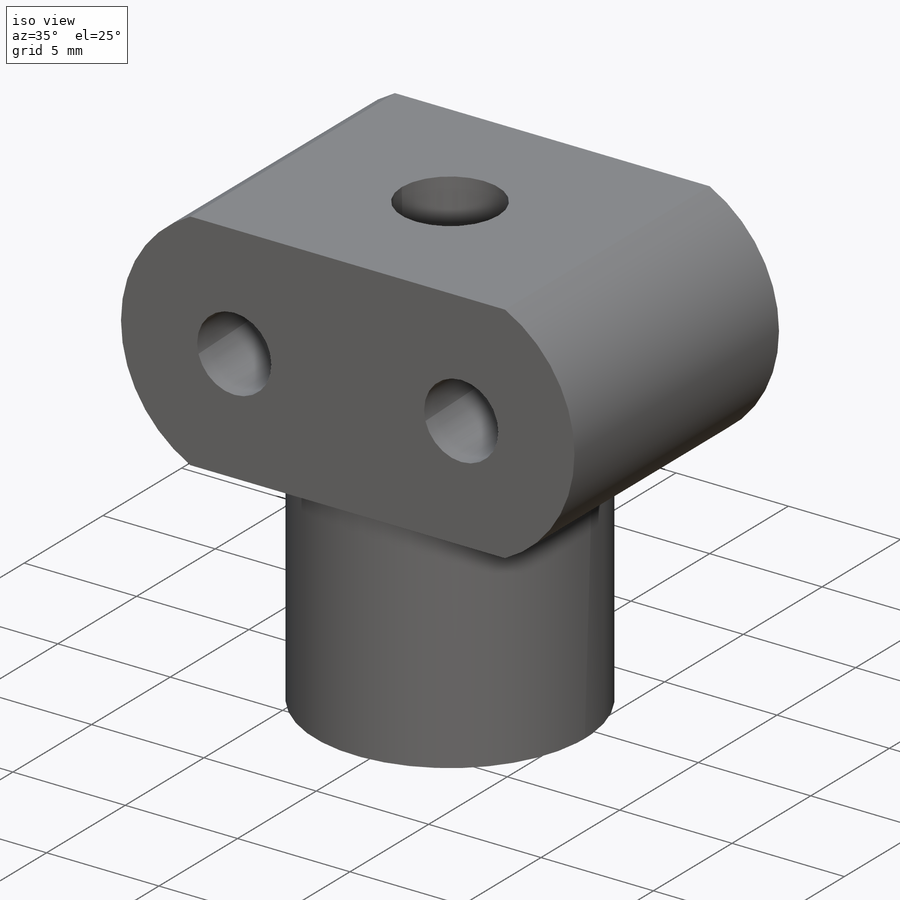
[diagram: iso view]
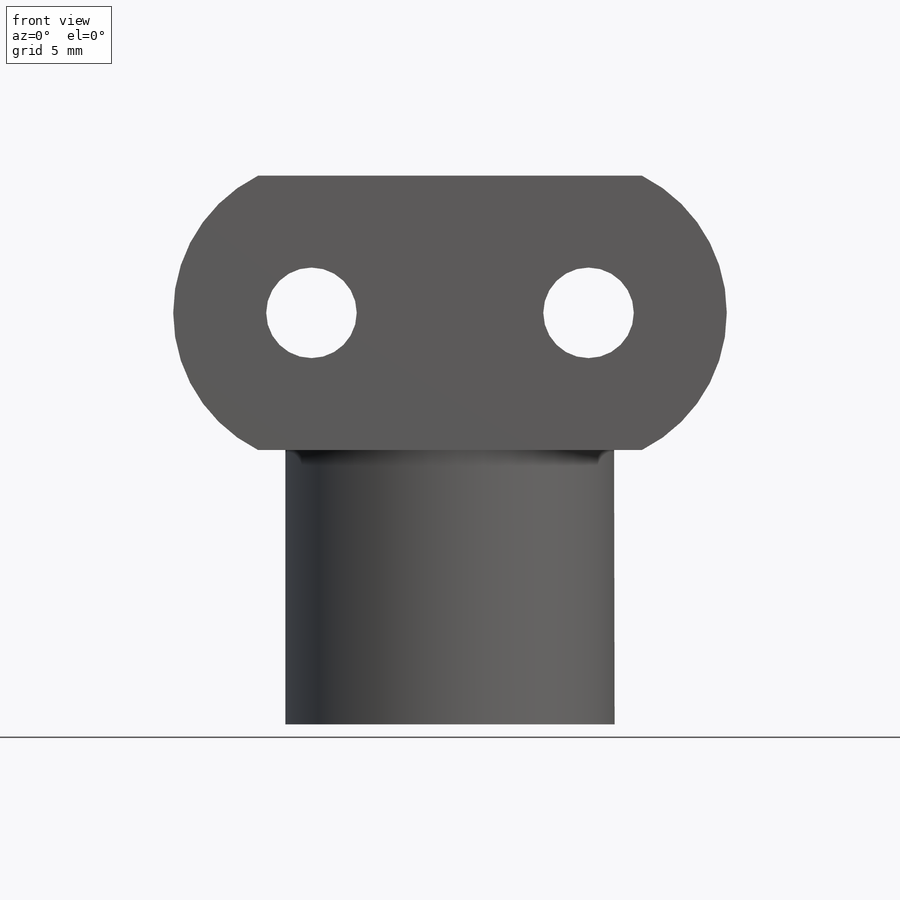
[diagram: front view]
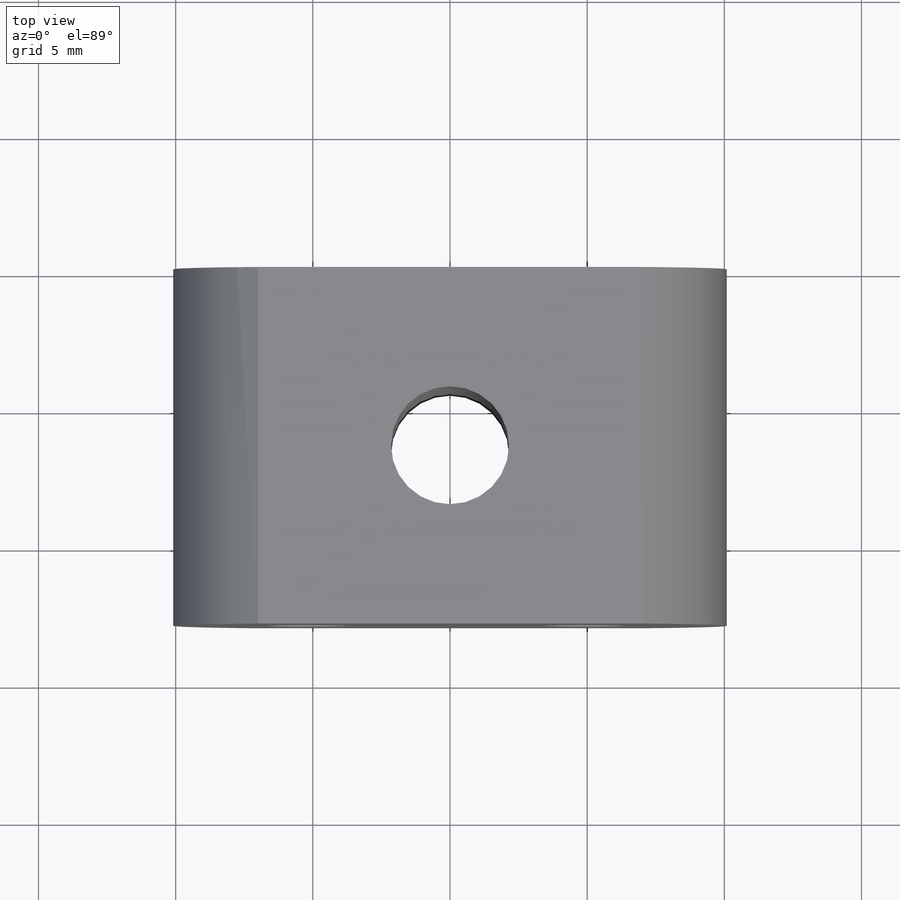
[diagram: top view]
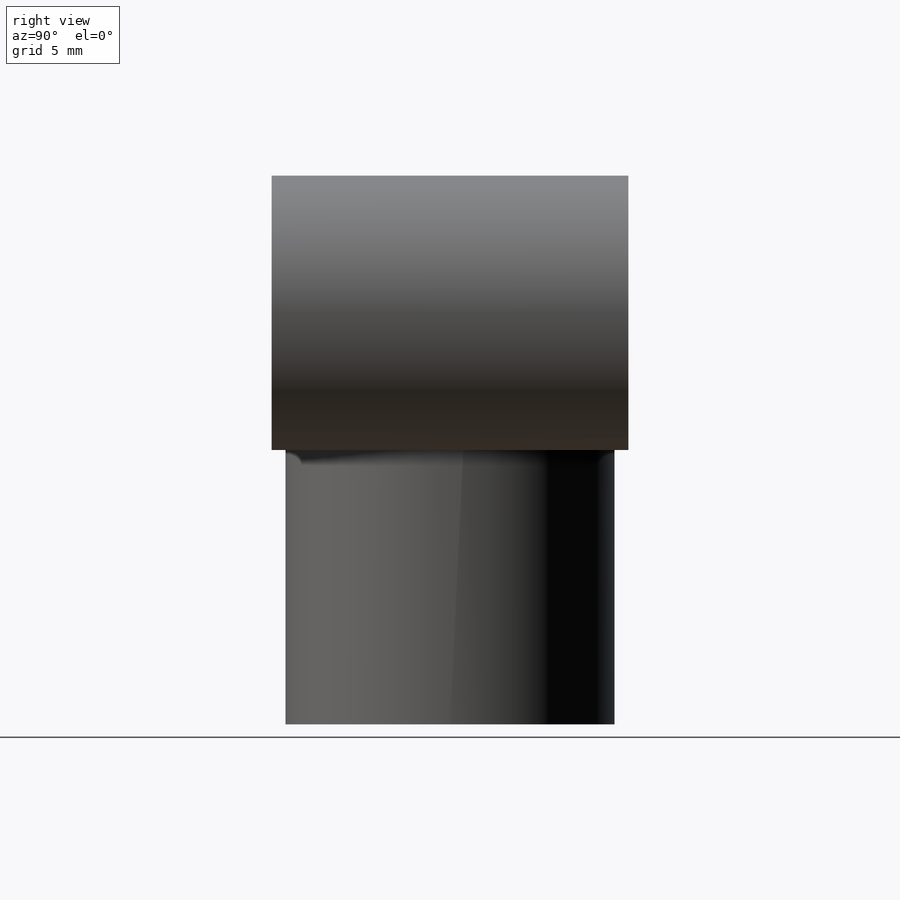
[diagram: right view]
SOLIDWORKS PART (.sldprt)
format: sldprt  version: not decoded by parser v0  size: 176,128 bytes
history: native  units: mm
features: sketch x4, extrude x2, cut_extrude x2, material x1 (+16 scaffold rows collapsed)
feature tree (25):
  scaffold x16  (default folders/planes/origin — collapsed)
  material  "Material <not specified>"
  sketch  "Sketch2"  dims[c1.D3=5.0mm c1.D1=10.0mm c1.D2=14.0mm c2.D3=9.0mm c2.D4=14.0mm c2.D5=~9.000309mm c3.D3=4.5mm c3.D5=4.5mm c3.D6=10.0mm]
  extrude  "Boss-Extrude1"  Depth=13mm
  sketch  "Sketch4"  dims[D1=4.3mm]
  sketch  "Sketch8"  dims[D1=3.3mm D2=3.3mm D3=5.05mm D4=5.05mm]
  cut_extrude  "Cut-Extrude4"  [1 undecoded]
  sketch  "Sketch6"  dims[D1=12.0mm]
  extrude  "Boss-Extrude2"  Depth=10mm
  cut_extrude  "Cut-Extrude3"  [1 undecoded]
decode coverage: 6 of 8 modeling features carry decoded parameters
note: ~ marks probable driven/reference dimensions
note: 2 parameter values undecoded
note: suppression state not decoded; provenance and decode notes live in map.json
